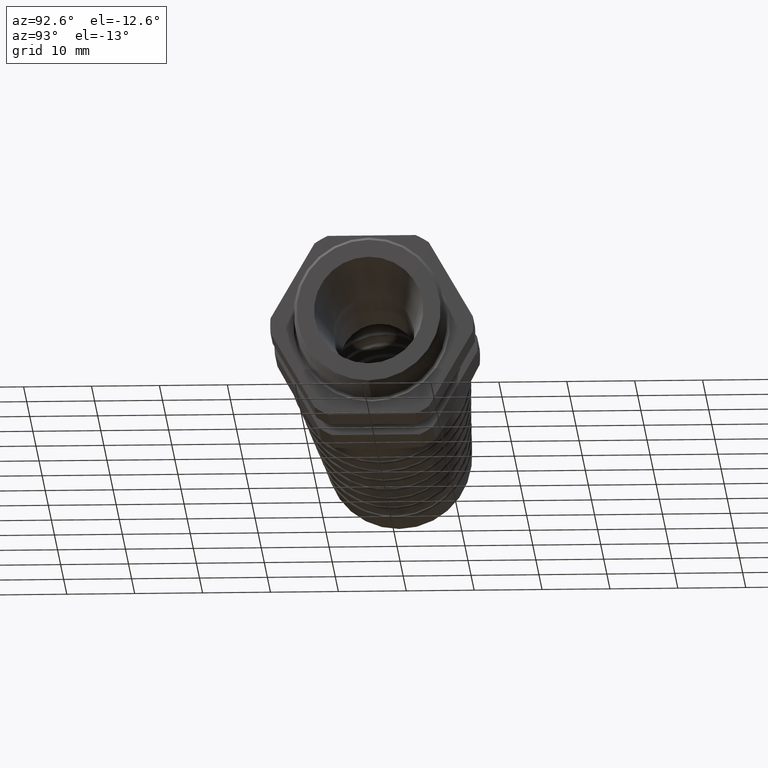
[diagram: clean part render]
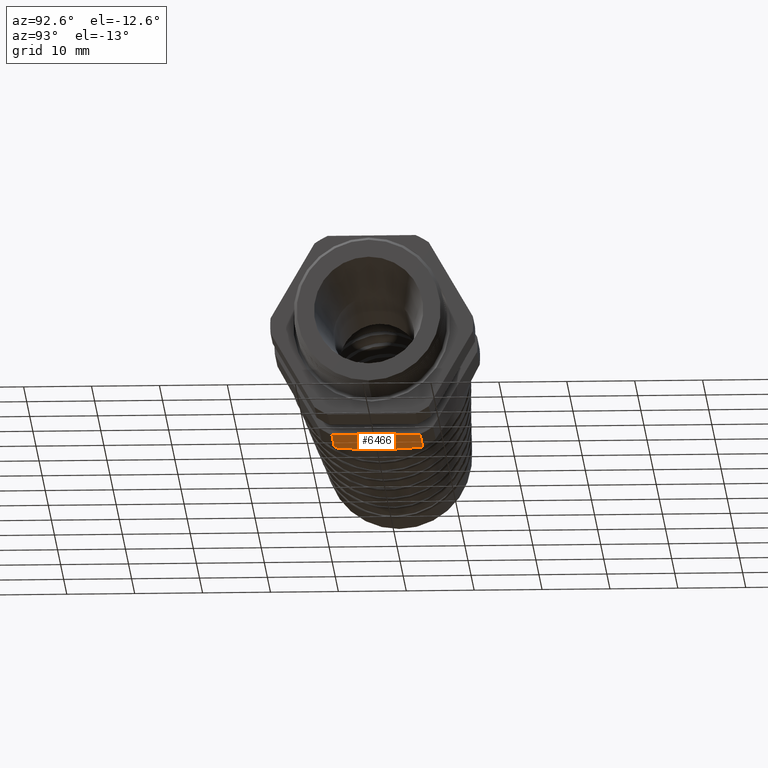
[diagram: same view with one face highlighted and labeled with its STEP entity id]
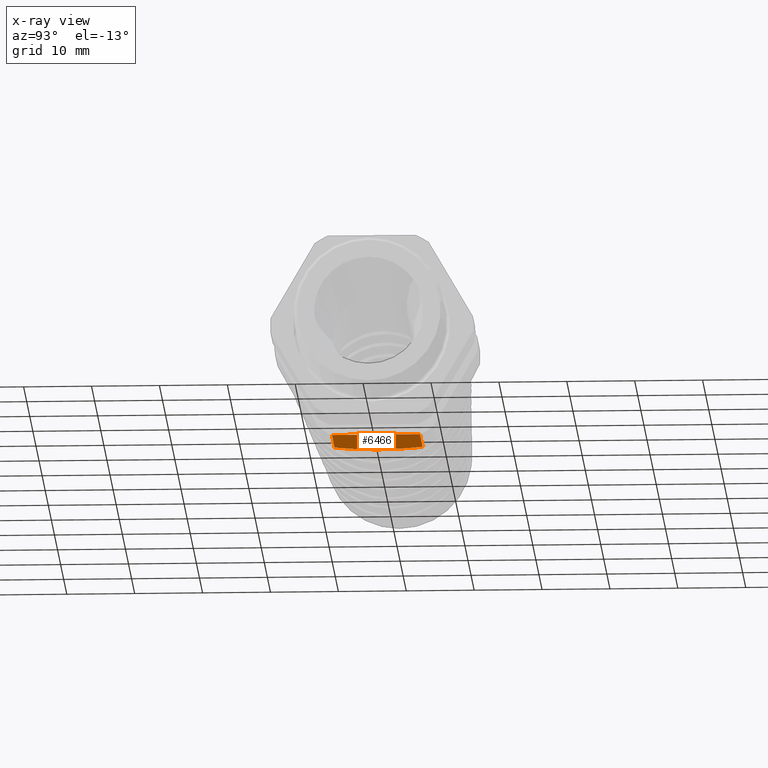
[diagram: x-ray of the same camera — body ghosted, the highlighted face saturated]
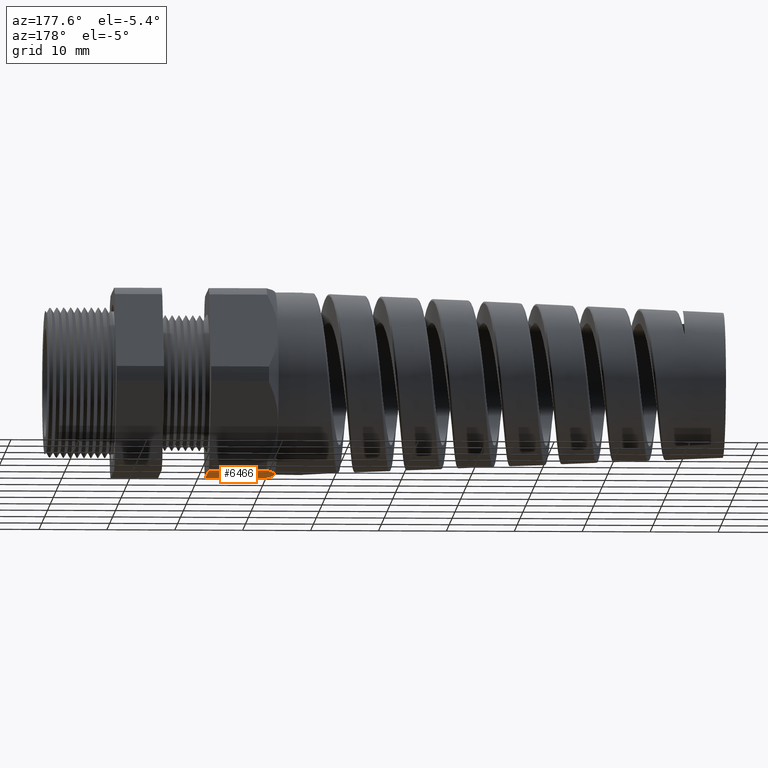
[diagram: same view with one face highlighted and labeled with its STEP entity id]
A machine part, auxiliary view. The second image highlights one B-rep face of the part: STEP entity #6466.
The next image is the same camera in x-ray: the body ghosted, the highlighted face saturated — about 0% of this face is hidden behind the body in this view.
A second angle (auxiliary view) of the same face is appended — the face is thin or edge-on in the first view.
In plain terms, the highlighted planar face has unit normal (0, 0, -1).
Its self-contained STEP definition (entity closure, byte-faithful):
#232 = VERTEX_POINT ( 'NONE', #2080 ) ;
#2080 = CARTESIAN_POINT ( 'NONE',  ( -1.251889763779527200, 6.829619984160658000E-017, -0.5300000000000001400 ) ) ;
#6433 = VERTEX_POINT ( 'NONE', #11820 ) ;
#6452 = VERTEX_POINT ( 'NONE', #11803 ) ;
#6454 = VERTEX_POINT ( 'NONE', #11800 ) ;
#6459 = EDGE_CURVE ( 'NONE', #6433, #232, #11845, .T. ) ;
#6461 = ORIENTED_EDGE ( 'NONE', *, *, #6459, .T. ) ;
#6462 = EDGE_LOOP ( 'NONE', ( #6469, #6461, #6465, #6470, #14567 ) ) ;
#6463 = EDGE_CURVE ( 'NONE', #232, #6452, #11835, .T. ) ;
#6465 = ORIENTED_EDGE ( 'NONE', *, *, #6463, .T. ) ;
#6466 = ADVANCED_FACE ( 'NONE', ( #11883 ), #11882, .T. ) ;
#6467 = EDGE_CURVE ( 'NONE', #6454, #6433, #11877, .T. ) ;
#6469 = ORIENTED_EDGE ( 'NONE', *, *, #6467, .T. ) ;
#6470 = ORIENTED_EDGE ( 'NONE', *, *, #14576, .F. ) ;
#11800 = CARTESIAN_POINT ( 'NONE',  ( -0.8581889763779526600, -0.2553368167734529900, -0.5300000000000001400 ) ) ;
#11803 = CARTESIAN_POINT ( 'NONE',  ( -1.193589763779527600, 0.2553368167734529900, -0.5300000000000001400 ) ) ;
#11820 = CARTESIAN_POINT ( 'NONE',  ( -1.193589763779527600, -0.2553368167734529900, -0.5300000000000001400 ) ) ;
#11826 = CARTESIAN_POINT ( 'NONE',  ( -1.193589763779527600, 0.2553368167734529900, -0.5300000000000001400 ) ) ;
#11827 = CARTESIAN_POINT ( 'NONE',  ( -1.202315209282154300, 0.2352332545294324500, -0.5300000000000001400 ) ) ;
#11828 = CARTESIAN_POINT ( 'NONE',  ( -1.210400546957777400, 0.2146751329927175900, -0.5300000000000002500 ) ) ;
#11829 = CARTESIAN_POINT ( 'NONE',  ( -1.224756978727402600, 0.1728653463301441900, -0.5300000000000001400 ) ) ;
#11830 = CARTESIAN_POINT ( 'NONE',  ( -1.230972187904893200, 0.1517815661146134900, -0.5300000000000000300 ) ) ;
#11831 = CARTESIAN_POINT ( 'NONE',  ( -1.246243303253947300, 0.08790338043595148600, -0.5300000000000002500 ) ) ;
#11832 = CARTESIAN_POINT ( 'NONE',  ( -1.251889763779527200, 0.04442461113430314100, -0.5300000000000001400 ) ) ;
#11833 = CARTESIAN_POINT ( 'NONE',  ( -1.251889763779527200, 6.829619984160658000E-017, -0.5300000000000001400 ) ) ;
#11835 = B_SPLINE_CURVE_WITH_KNOTS ( 'NONE', 3,
 ( #11833, #11832, #11831, #11830, #11829, #11828, #11827, #11826 ),
 .UNSPECIFIED., .F., .F.,
 ( 4, 2, 2, 4 ),
 ( 0.01654986782800525700, 0.01986774133493489700, 0.02152667808839971500, 0.02318561484186453700 ),
 .UNSPECIFIED. ) ;
#11836 = CARTESIAN_POINT ( 'NONE',  ( -1.251889763779527200, 6.829619984160658000E-017, -0.5300000000000001400 ) ) ;
#11837 = CARTESIAN_POINT ( 'NONE',  ( -1.251889763779527200, -0.04445874038965398600, -0.5300000000000001400 ) ) ;
#11838 = CARTESIAN_POINT ( 'NONE',  ( -1.246247613928072700, -0.08787186943844412000, -0.5300000000000002500 ) ) ;
#11839 = CARTESIAN_POINT ( 'NONE',  ( -1.230985735511015200, -0.1517316267221616400, -0.5300000000000001400 ) ) ;
#11840 = CARTESIAN_POINT ( 'NONE',  ( -1.224774055191621300, -0.1728098393691073200, -0.5300000000000001400 ) ) ;
#11841 = CARTESIAN_POINT ( 'NONE',  ( -1.210425092320963600, -0.2146094092825768500, -0.5300000000000001400 ) ) ;
#11842 = CARTESIAN_POINT ( 'NONE',  ( -1.202325677415366100, -0.2352091357875814300, -0.5300000000000001400 ) ) ;
#11843 = CARTESIAN_POINT ( 'NONE',  ( -1.193589763779527600, -0.2553368167734529900, -0.5300000000000001400 ) ) ;
#11845 = B_SPLINE_CURVE_WITH_KNOTS ( 'NONE', 3,
 ( #11843, #11842, #11841, #11840, #11839, #11838, #11837, #11836 ),
 .UNSPECIFIED., .F., .F.,
 ( 4, 2, 2, 4 ),
 ( 0.009909022894355612100, 0.01156923412776802300, 0.01322944536118043600, 0.01654986782800525700 ),
 .UNSPECIFIED. ) ;
#11874 = DIRECTION ( 'NONE',  ( -1.000000000000000000, 0.0000000000000000000, 0.0000000000000000000 ) ) ;
#11875 = VECTOR ( 'NONE', #11874, 39.37007874015748100 ) ;
#11876 = CARTESIAN_POINT ( 'NONE',  ( 0.08000000000000023800, -0.2553368167734529900, -0.5300000000000001400 ) ) ;
#11877 = LINE ( 'NONE', #11876, #11875 ) ;
#11878 = DIRECTION ( 'NONE',  ( -1.000000000000000000, 0.0000000000000000000, 0.0000000000000000000 ) ) ;
#11879 = DIRECTION ( 'NONE',  ( 0.0000000000000000000, 0.0000000000000000000, -1.000000000000000000 ) ) ;
#11880 = CARTESIAN_POINT ( 'NONE',  ( 0.08000000000000023800, 0.2553368167734529900, -0.5300000000000001400 ) ) ;
#11881 = AXIS2_PLACEMENT_3D ( 'NONE', #11880, #11879, #11878 ) ;
#11882 = PLANE ( 'NONE',  #11881 ) ;
#11883 = FACE_OUTER_BOUND ( 'NONE', #6462, .T. ) ;
#13751 = LINE ( 'NONE', #13818, #13817 ) ;
#13757 = CARTESIAN_POINT ( 'NONE',  ( -0.8581889763779526600, 0.2553368167734529900, -0.5300000000000001400 ) ) ;
#13759 = DIRECTION ( 'NONE',  ( 0.0000000000000000000, 1.000000000000000000, 0.0000000000000000000 ) ) ;
#13760 = VECTOR ( 'NONE', #13759, 39.37007874015748100 ) ;
#13761 = CARTESIAN_POINT ( 'NONE',  ( -0.8581889763779526600, 0.4005000000000000200, -0.5300000000000001400 ) ) ;
#13762 = LINE ( 'NONE', #13761, #13760 ) ;
#13816 = DIRECTION ( 'NONE',  ( -1.000000000000000000, 0.0000000000000000000, 0.0000000000000000000 ) ) ;
#13817 = VECTOR ( 'NONE', #13816, 39.37007874015748100 ) ;
#13818 = CARTESIAN_POINT ( 'NONE',  ( 0.08000000000000023800, 0.2553368167734529900, -0.5300000000000001400 ) ) ;
#14567 = ORIENTED_EDGE ( 'NONE', *, *, #14568, .F. ) ;
#14568 = EDGE_CURVE ( 'NONE', #6454, #14571, #13762, .T. ) ;
#14571 = VERTEX_POINT ( 'NONE', #13757 ) ;
#14576 = EDGE_CURVE ( 'NONE', #14571, #6452, #13751, .T. ) ;